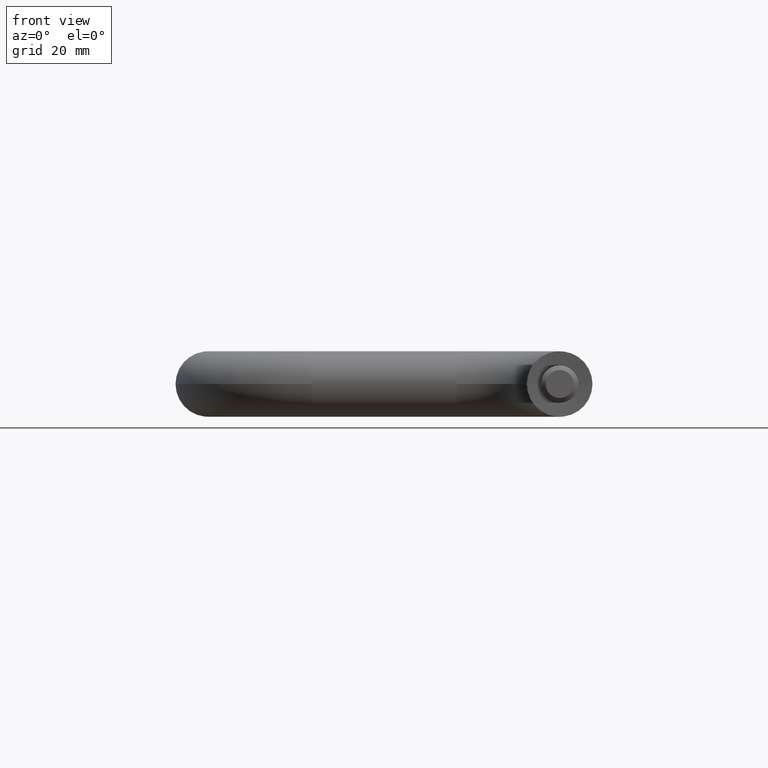
[diagram: clean part render]
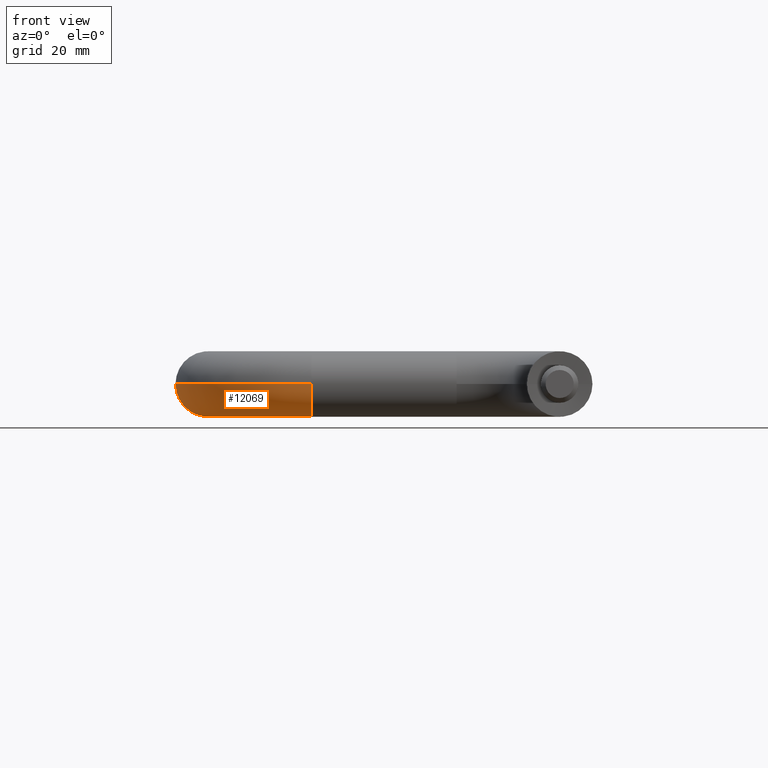
[diagram: same view with one face highlighted and labeled with its STEP entity id]
A machine part, front view. The second image highlights one B-rep face of the part: STEP entity #12069.
In plain terms, the highlighted toroidal blend (fillet) surface has major radius 22 mm and minor (blend) radius 7 mm.
Its self-contained STEP definition (entity closure, byte-faithful):
#49 = ORIENTED_EDGE ( 'NONE', *, *, #4680, .F. ) ;
#359 = VERTEX_POINT ( 'NONE', #3684 ) ;
#564 = CARTESIAN_POINT ( 'NONE',  ( -53.00000000000000000, 37.50000000000000700, 0.0000000000000000000 ) ) ;
#683 = DIRECTION ( 'NONE',  ( 0.0000000000000000000, 0.0000000000000000000, 1.000000000000000000 ) ) ;
#783 = ORIENTED_EDGE ( 'NONE', *, *, #8703, .T. ) ;
#794 = CARTESIAN_POINT ( 'NONE',  ( -53.00000000000000000, 59.49999999999999300, 8.572527594031473200E-016 ) ) ;
#1715 = DIRECTION ( 'NONE',  ( -1.000000000000000000, 0.0000000000000000000, 0.0000000000000000000 ) ) ;
#1750 = DIRECTION ( 'NONE',  ( -0.0000000000000000000, -0.0000000000000000000, -1.000000000000000000 ) ) ;
#1863 = DIRECTION ( 'NONE',  ( -1.000000000000000000, 0.0000000000000000000, 0.0000000000000000000 ) ) ;
#1882 = EDGE_CURVE ( 'NONE', #12705, #3611, #7128, .T. ) ;
#2125 = CIRCLE ( 'NONE', #9813, 7.000000000000000000 ) ;
#2572 = VERTEX_POINT ( 'NONE', #11274 ) ;
#3611 = VERTEX_POINT ( 'NONE', #8356 ) ;
#3651 = DIRECTION ( 'NONE',  ( -1.000000000000000000, -1.608122649676636600E-016, 0.0000000000000000000 ) ) ;
#3684 = CARTESIAN_POINT ( 'NONE',  ( -67.99999999999997200, 59.49999999999998600, 8.572527594031463300E-016 ) ) ;
#3790 = DIRECTION ( 'NONE',  ( -0.0000000000000000000, -0.0000000000000000000, -1.000000000000000000 ) ) ;
#4680 = EDGE_CURVE ( 'NONE', #12705, #359, #6500, .T. ) ;
#4840 = DIRECTION ( 'NONE',  ( 0.0000000000000000000, 0.0000000000000000000, 1.000000000000000000 ) ) ;
#4867 = AXIS2_PLACEMENT_3D ( 'NONE', #794, #8046, #1863 ) ;
#4985 = CARTESIAN_POINT ( 'NONE',  ( -53.00000000000000000, 59.49999999999999300, 0.0000000000000000000 ) ) ;
#5293 = CIRCLE ( 'NONE', #10851, 28.99999999999998900 ) ;
#5808 = DIRECTION ( 'NONE',  ( -1.000000000000000000, 0.0000000000000000000, 0.0000000000000000000 ) ) ;
#6153 = DIRECTION ( 'NONE',  ( -1.000000000000000000, -1.608122649676636600E-016, 0.0000000000000000000 ) ) ;
#6293 = VERTEX_POINT ( 'NONE', #8088 ) ;
#6500 = CIRCLE ( 'NONE', #4867, 14.99999999999997900 ) ;
#6570 = ORIENTED_EDGE ( 'NONE', *, *, #8042, .F. ) ;
#6613 = CARTESIAN_POINT ( 'NONE',  ( -53.00000000000000000, 44.50000000000000700, 8.572527594031474200E-016 ) ) ;
#6927 = CARTESIAN_POINT ( 'NONE',  ( -53.00000000000000000, 37.50000000000000700, 0.0000000000000000000 ) ) ;
#7128 = CIRCLE ( 'NONE', #12631, 7.000000000000000000 ) ;
#7466 = AXIS2_PLACEMENT_3D ( 'NONE', #6927, #6153, #13396 ) ;
#7989 = CIRCLE ( 'NONE', #7466, 7.000000000000000000 ) ;
#7998 = FACE_OUTER_BOUND ( 'NONE', #9396, .T. ) ;
#8042 = EDGE_CURVE ( 'NONE', #359, #6293, #2125, .T. ) ;
#8046 = DIRECTION ( 'NONE',  ( -0.0000000000000000000, -0.0000000000000000000, -1.000000000000000000 ) ) ;
#8088 = CARTESIAN_POINT ( 'NONE',  ( -81.99999999999998600, 59.49999999999998600, 0.0000000000000000000 ) ) ;
#8312 = ORIENTED_EDGE ( 'NONE', *, *, #1882, .T. ) ;
#8356 = CARTESIAN_POINT ( 'NONE',  ( -53.00000000000000000, 37.50000000000000700, -7.000000000000000000 ) ) ;
#8574 = ORIENTED_EDGE ( 'NONE', *, *, #10923, .T. ) ;
#8703 = EDGE_CURVE ( 'NONE', #3611, #2572, #7989, .T. ) ;
#8952 = AXIS2_PLACEMENT_3D ( 'NONE', #9951, #3790, #1715 ) ;
#9115 = CARTESIAN_POINT ( 'NONE',  ( -74.99999999999998600, 59.49999999999998600, 0.0000000000000000000 ) ) ;
#9396 = EDGE_LOOP ( 'NONE', ( #783, #8574, #6570, #49, #8312 ) ) ;
#9813 = AXIS2_PLACEMENT_3D ( 'NONE', #9115, #11101, #683 ) ;
#9951 = CARTESIAN_POINT ( 'NONE',  ( -53.00000000000000000, 59.49999999999999300, 0.0000000000000000000 ) ) ;
#10851 = AXIS2_PLACEMENT_3D ( 'NONE', #4985, #1750, #5808 ) ;
#10923 = EDGE_CURVE ( 'NONE', #2572, #6293, #5293, .T. ) ;
#11101 = DIRECTION ( 'NONE',  ( -2.220446049250313100E-016, 1.000000000000000000, 0.0000000000000000000 ) ) ;
#11274 = CARTESIAN_POINT ( 'NONE',  ( -52.99999999999999300, 30.50000000000000700, 0.0000000000000000000 ) ) ;
#12069 = ADVANCED_FACE ( 'NONE', ( #7998 ), #12851, .T. ) ;
#12631 = AXIS2_PLACEMENT_3D ( 'NONE', #564, #3651, #4840 ) ;
#12705 = VERTEX_POINT ( 'NONE', #6613 ) ;
#12851 = TOROIDAL_SURFACE ( 'NONE', #8952, 21.99999999999998600, 7.000000000000000000 ) ;
#13396 = DIRECTION ( 'NONE',  ( 0.0000000000000000000, 0.0000000000000000000, 1.000000000000000000 ) ) ;